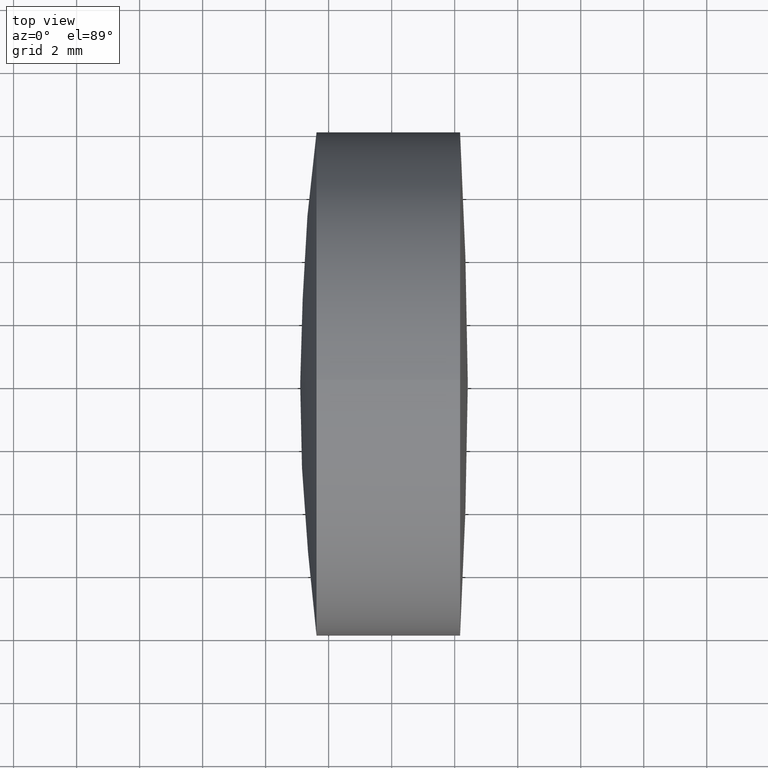
[diagram: clean part render]
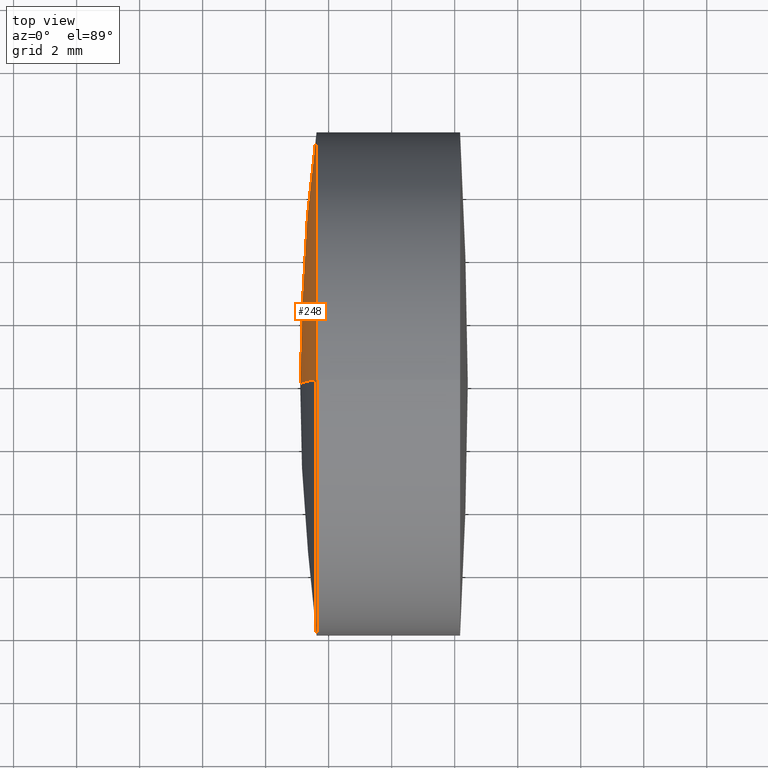
[diagram: same view with one face highlighted and labeled with its STEP entity id]
A machine part, top view. The second image highlights one B-rep face of the part: STEP entity #248.
In plain terms, the highlighted spherical surface has radius 61.954 mm.
Its self-contained STEP definition (entity closure, byte-faithful):
#10 = CARTESIAN_POINT ( 'NONE',  ( 95.05027061595363600, 0.0000000000000000000, 3.037462302040094600E-017 ) ) ;
#26 = DIRECTION ( 'NONE',  ( 0.0000000000000000000, 1.000000000000000000, -0.0000000000000000000 ) ) ;
#36 = VERTEX_POINT ( 'NONE', #119 ) ;
#37 = DIRECTION ( 'NONE',  ( 0.0000000000000000000, 0.0000000000000000000, 1.000000000000000000 ) ) ;
#40 = EDGE_CURVE ( 'NONE', #102, #36, #345, .T. ) ;
#42 = AXIS2_PLACEMENT_3D ( 'NONE', #198, #279, #37 ) ;
#44 = EDGE_LOOP ( 'NONE', ( #165, #73, #312 ) ) ;
#73 = ORIENTED_EDGE ( 'NONE', *, *, #139, .T. ) ;
#88 = AXIS2_PLACEMENT_3D ( 'NONE', #10, #286, #293 ) ;
#90 = CIRCLE ( 'NONE', #42, 8.000000000000000000 ) ;
#93 = CARTESIAN_POINT ( 'NONE',  ( 33.61495409524220400, -9.797174393178819700E-016, 7.999999999999992900 ) ) ;
#96 = DIRECTION ( 'NONE',  ( 0.0000000000000000000, 1.224646799147353200E-016, -1.000000000000000000 ) ) ;
#102 = VERTEX_POINT ( 'NONE', #93 ) ;
#119 = CARTESIAN_POINT ( 'NONE',  ( 33.09627061595364900, 0.0000000000000000000, -3.763213766698355200E-015 ) ) ;
#139 = EDGE_CURVE ( 'NONE', #102, #223, #90, .T. ) ;
#143 = CIRCLE ( 'NONE', #259, 61.95399999999999400 ) ;
#158 = DIRECTION ( 'NONE',  ( 0.0000000000000000000, 0.0000000000000000000, 1.000000000000000000 ) ) ;
#165 = ORIENTED_EDGE ( 'NONE', *, *, #40, .F. ) ;
#197 = FACE_OUTER_BOUND ( 'NONE', #44, .T. ) ;
#198 = CARTESIAN_POINT ( 'NONE',  ( 33.61495409524220400, 0.0000000000000000000, 0.0000000000000000000 ) ) ;
#210 = CARTESIAN_POINT ( 'NONE',  ( 95.05027061595363600, 0.0000000000000000000, 3.037462302040094600E-017 ) ) ;
#213 = CARTESIAN_POINT ( 'NONE',  ( 95.05027061595363600, 0.0000000000000000000, 3.037462302040094600E-017 ) ) ;
#218 = AXIS2_PLACEMENT_3D ( 'NONE', #213, #298, #96 ) ;
#223 = VERTEX_POINT ( 'NONE', #294 ) ;
#232 = EDGE_CURVE ( 'NONE', #223, #36, #143, .T. ) ;
#248 = ADVANCED_FACE ( 'NONE', ( #197 ), #283, .T. ) ;
#259 = AXIS2_PLACEMENT_3D ( 'NONE', #210, #26, #158 ) ;
#279 = DIRECTION ( 'NONE',  ( -1.000000000000000000, -0.0000000000000000000, -0.0000000000000000000 ) ) ;
#283 = SPHERICAL_SURFACE ( 'NONE', #88, 61.95399999999999400 ) ;
#286 = DIRECTION ( 'NONE',  ( -0.0000000000000000000, -1.000000000000000000, -0.0000000000000000000 ) ) ;
#293 = DIRECTION ( 'NONE',  ( 0.0000000000000000000, 0.0000000000000000000, -1.000000000000000000 ) ) ;
#294 = CARTESIAN_POINT ( 'NONE',  ( 33.61495409524220400, 0.0000000000000000000, -7.999999999999992900 ) ) ;
#298 = DIRECTION ( 'NONE',  ( 0.0000000000000000000, -1.000000000000000000, -1.224646799147353200E-016 ) ) ;
#312 = ORIENTED_EDGE ( 'NONE', *, *, #232, .T. ) ;
#345 = CIRCLE ( 'NONE', #218, 61.95399999999999400 ) ;